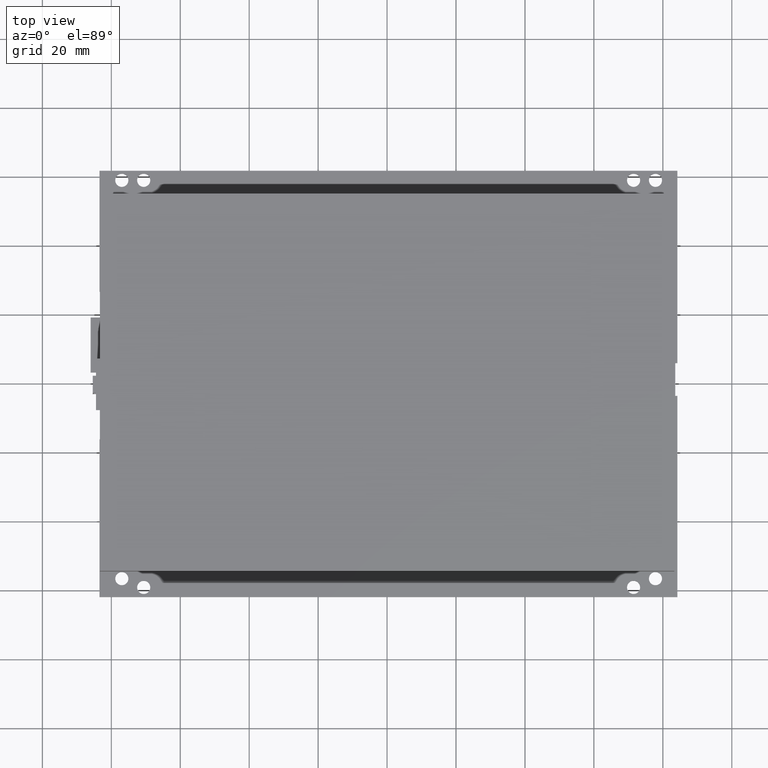
[diagram: clean part render]
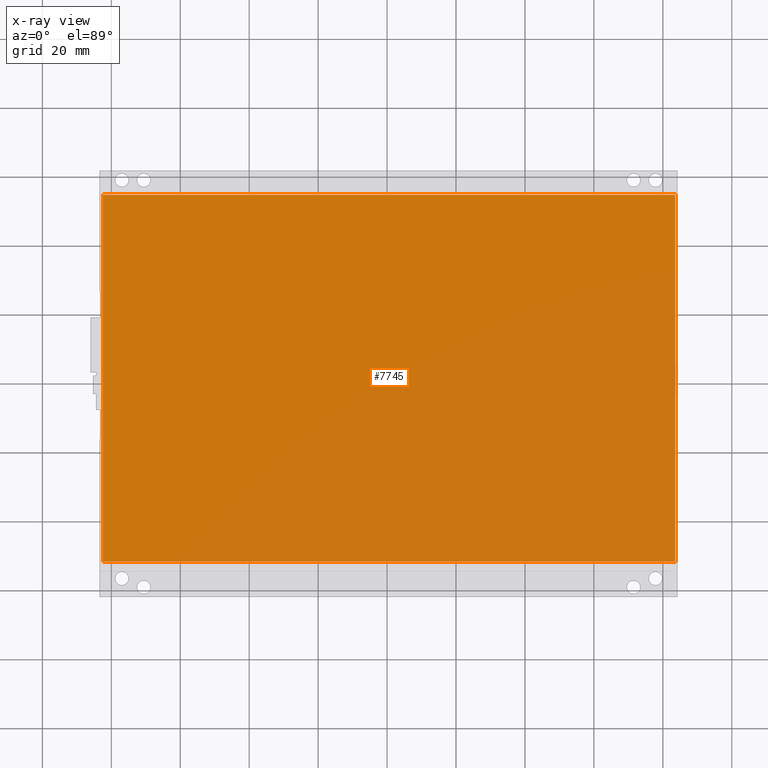
[diagram: x-ray — body ghosted, one internal face saturated and labeled with its STEP entity id]
A machine part, top view, then the same camera in x-ray: the body is ghosted and one INTERNAL B-rep face — a face not visible from any outside direction — is saturated and labeled: STEP entity #7745.
In plain terms, the highlighted planar face has unit normal (-0, 0, -1).
Its self-contained STEP definition (entity closure, byte-faithful):
#829 = EDGE_CURVE ( 'NONE', #8512, #8501, #2282, .T. ) ;
#833 = EDGE_CURVE ( 'NONE', #8501, #8513, #2319, .T. ) ;
#839 = EDGE_CURVE ( 'NONE', #8513, #8486, #2309, .T. ) ;
#841 = EDGE_CURVE ( 'NONE', #8486, #8512, #2343, .T. ) ;
#2282 = LINE ( 'NONE', #2308, #8176 ) ;
#2308 = CARTESIAN_POINT ( 'NONE',  ( -3.267716535433081900, 0.05905511811023490800, -2.094488188976375600 ) ) ;
#2309 = LINE ( 'NONE', #2338, #5643 ) ;
#2310 = DIRECTION ( 'NONE',  ( -4.163336342344345400E-016, 7.902038014058880900E-016, 1.000000000000000000 ) ) ;
#2319 = LINE ( 'NONE', #2320, #8181 ) ;
#2320 = CARTESIAN_POINT ( 'NONE',  ( -3.267716535433081900, 0.05905511811023764200, 2.094488188976380900 ) ) ;
#2321 = DIRECTION ( 'NONE',  ( 1.000000000000000000, 6.937569603944417800E-017, -4.163336342344326200E-016 ) ) ;
#2338 = CARTESIAN_POINT ( 'NONE',  ( 3.267716535433081900, 0.05905511811023764200, 2.094488188976378200 ) ) ;
#2339 = DIRECTION ( 'NONE',  ( 4.163336342344345400E-016, -7.902038014058880900E-016, -1.000000000000000000 ) ) ;
#2343 = LINE ( 'NONE', #2344, #5644 ) ;
#2344 = CARTESIAN_POINT ( 'NONE',  ( 3.267716535433081900, 0.05905511811023490800, -2.094488188976377800 ) ) ;
#2345 = DIRECTION ( 'NONE',  ( -1.000000000000000000, -6.937569603944424000E-017, 3.327325028620568100E-016 ) ) ;
#4287 = CARTESIAN_POINT ( 'NONE',  ( -3.267716535433081900, 0.05905511811023757300, 2.094488188976380900 ) ) ;
#4295 = FACE_OUTER_BOUND ( 'NONE', #13880, .T. ) ;
#4296 = PLANE ( 'NONE',  #19172 ) ;
#4298 = DIRECTION ( 'NONE',  ( 6.937569603944512700E-017, 1.000000000000000000, -7.902038014058880900E-016 ) ) ;
#4299 = DIRECTION ( 'NONE',  ( -4.163336342344345400E-016, 7.902038014058880900E-016, 1.000000000000000000 ) ) ;
#5643 = VECTOR ( 'NONE', #2339, 39.37007874015748100 ) ;
#5644 = VECTOR ( 'NONE', #2345, 39.37007874015748100 ) ;
#7745 = ADVANCED_FACE ( 'NONE', ( #4295 ), #4296, .T. ) ;
#8176 = VECTOR ( 'NONE', #2310, 39.37007874015748100 ) ;
#8181 = VECTOR ( 'NONE', #2321, 39.37007874015748100 ) ;
#8486 = VERTEX_POINT ( 'NONE', #9377 ) ;
#8501 = VERTEX_POINT ( 'NONE', #9387 ) ;
#8512 = VERTEX_POINT ( 'NONE', #9394 ) ;
#8513 = VERTEX_POINT ( 'NONE', #9395 ) ;
#9377 = CARTESIAN_POINT ( 'NONE',  ( 3.267716535433081900, 0.05905511811023490800, -2.094488188976377800 ) ) ;
#9387 = CARTESIAN_POINT ( 'NONE',  ( -3.267716535433081900, 0.05905511811023764200, 2.094488188976380900 ) ) ;
#9394 = CARTESIAN_POINT ( 'NONE',  ( -3.267716535433081900, 0.05905511811023490800, -2.094488188976375600 ) ) ;
#9395 = CARTESIAN_POINT ( 'NONE',  ( 3.267716535433081900, 0.05905511811023764200, 2.094488188976378200 ) ) ;
#13880 = EDGE_LOOP ( 'NONE', ( #19008, #19010, #19012, #19014 ) ) ;
#19008 = ORIENTED_EDGE ( 'NONE', *, *, #839, .T. ) ;
#19010 = ORIENTED_EDGE ( 'NONE', *, *, #841, .T. ) ;
#19012 = ORIENTED_EDGE ( 'NONE', *, *, #829, .T. ) ;
#19014 = ORIENTED_EDGE ( 'NONE', *, *, #833, .T. ) ;
#19172 = AXIS2_PLACEMENT_3D ( 'NONE', #4287, #4298, #4299 ) ;